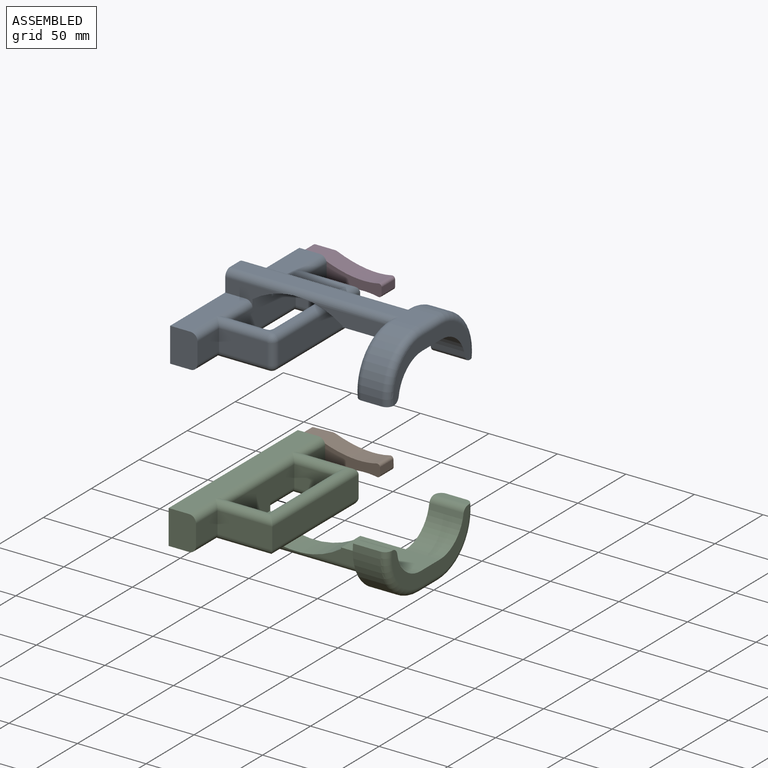
[diagram: assembled view]
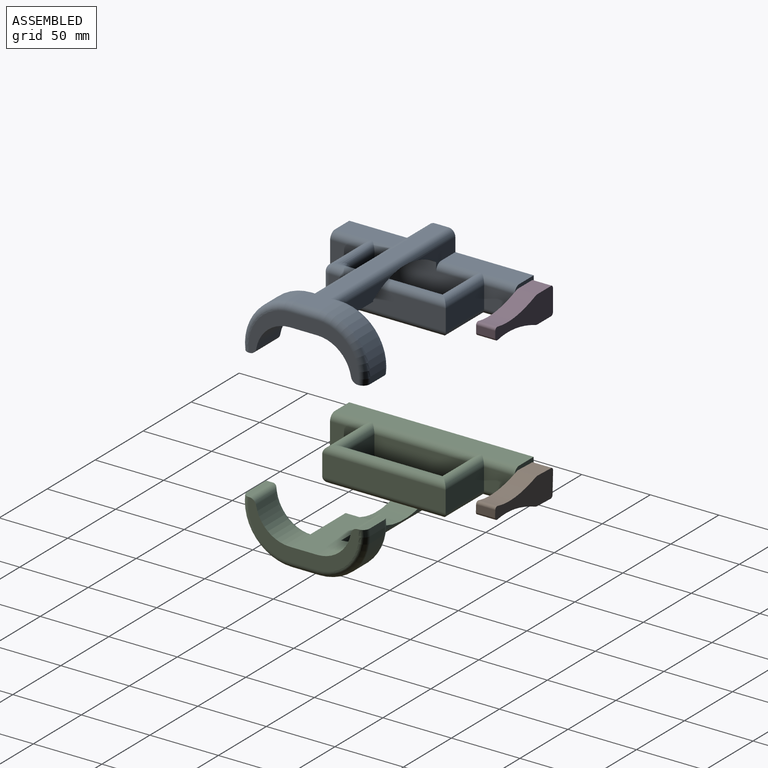
[diagram: assembled view, second angle]
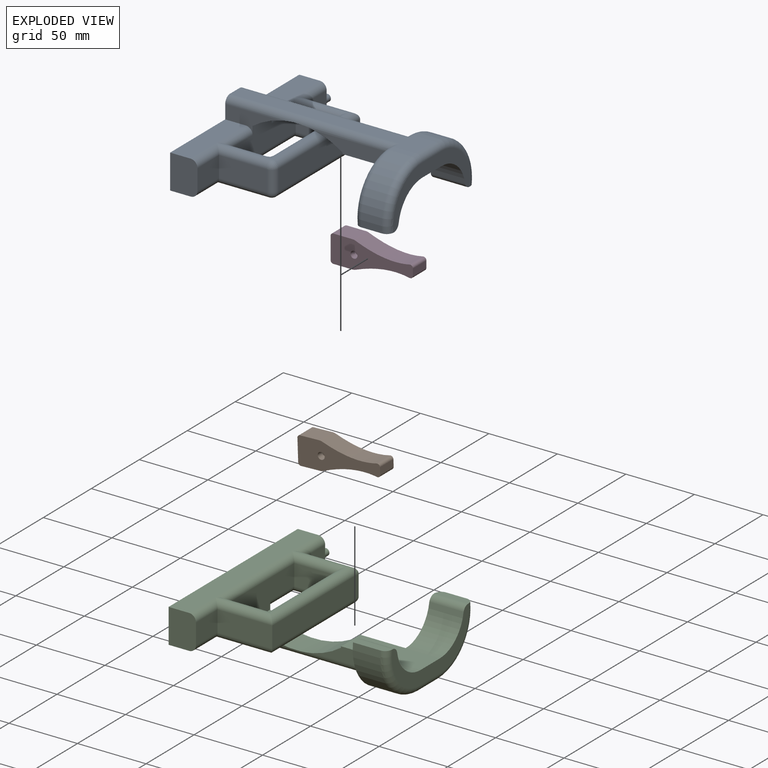
[diagram: exploded view]
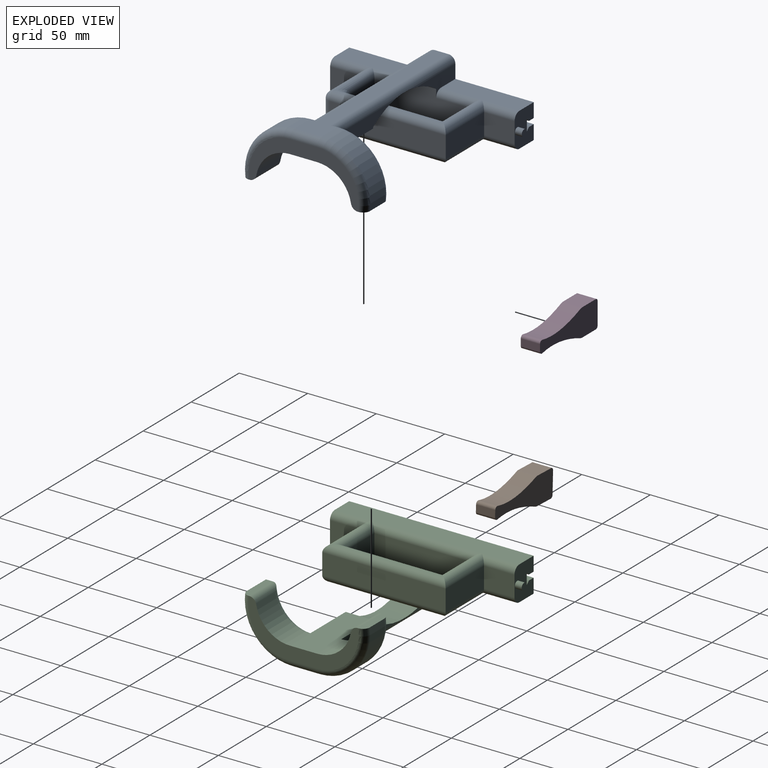
[diagram: exploded view, second angle]
ASSEMBLY  parts=4 mates=2
PART A: 70 faces, bbox 143.8x139.6x43.9 mm
  f0: plane 53.52x10mm, normal (0,-1,0), area 407mm2, adj f6,f26,f38,f39,f64
  f1: plane 40.31x15mm, normal (0,1,0), area 280.3mm2, adj f2,f8,f11,f38,f44,f67
  f2: plane 57.22x14.96mm, normal (0,0,1), area 856mm2, adj f1,f9,f11,f44,f52
  f3: plane 53.52x10mm, normal (0,1,0), area 407mm2, adj f6,f32,f38,f39,f67
  f4: plane 40.31x15mm, normal (0,-1,0), area 280.3mm2, adj f8,f11,f13,f38,f41,f64
  f5: plane 65x15mm, normal (-1,0,0), area 975mm2, adj f37,f42,f45,f50
  f6: plane 58.17x20mm, normal (0,0,-1), area 1163.4mm2, adj f0,f3,f23,f27,f29,f39
  f7: plane 22.22x15mm, normal (1,0,0), area 333.3mm2, adj f9,f33,f52,f58
  f8: plane 70x21mm, normal (1,0,0), area 1170mm2, adj f1,f4,f36,f37,f38,f41,f44,f48
  f9: plane 25x19.96mm, normal (0,1,0), area 435.6mm2, adj f2,f7,f11,f14,f15,f17,f18,f19
  f10: plane 22.36x15mm, normal (1,0,0), area 335.4mm2, adj f12,f35,f56,f57
  f11: plane 134.58x40mm, normal (-1,0,0), area 3186.5mm2, adj f1,f2,f4,f9,f12,f13,f14,f17
  f12: plane 25x19.96mm, normal (0,-1,0), area 488.3mm2, adj f10,f11,f13,f14,f56,f57
  f13: plane 57.36x14.96mm, normal (0,0,1), area 858.1mm2, adj f4,f11,f12,f41,f56
  f14: plane 134.58x14.96mm, normal (0,0,-1), area 2013.2mm2, adj f9,f11,f12,f48,f57,f58
  f15: cylinder r=2.5mm len=5mm, axis (0,-1,0), area 78.5mm2, adj f9,f16
  f16: plane 5x5mm, normal (0,1,0), area 19.6mm2, adj f15
  f17: plane 116.8x5mm, normal (0,0,-1), area 584mm2, adj f9,f11,f18,f22
  f18: plane 116.8x2.12mm, normal (0.71,0,-0.71), area 350.4mm2, adj f9,f17,f19,f22
  f19: plane 116.8x8.24mm, normal (-1,0,0), area 962.7mm2, adj f9,f18,f20,f22
  f20: plane 116.8x2.12mm, normal (0.71,0,0.71), area 350.4mm2, adj f9,f19,f21,f22
  f21: plane 116.8x5mm, normal (0,0,1), area 584mm2, adj f9,f11,f20,f22
  f22: plane 8.24x7.12mm, normal (0,1,0), area 33mm2, adj f11,f17,f18,f19,f20,f21
  f23: plane 80.39x34.78mm, normal (1,0,0), area 932.2mm2, adj f6,f25,f27,f29,f30,f59,f60,f61
  f24: plane 138.77x20mm, normal (0,0,1), area 1537.7mm2, adj f11,f28,f31,f60,f64,f65,f67,f68
  f25: plane 25x5.44mm, normal (0,0,-1), area 125.2mm2, adj f23,f26,f28,f59,f63,f66
  f26: plane 34.78x30.2mm, normal (-1,0,0), area 366.1mm2, adj f0,f25,f27,f63,f66
  f27: cylinder r=24.9mm len=25mm, axis (1,0,0), area 870.7mm2, adj f6,f23,f26,f63
  f28: cylinder r=35.2mm len=39.78mm, axis (1,0,0), area 898.3mm2, adj f24,f25,f59,f66
  f29: cylinder r=24.9mm len=25mm, axis (1,0,0), area 870.7mm2, adj f6,f23,f32,f62
  f30: plane 25x5.44mm, normal (0,0,-1), area 125.2mm2, adj f23,f31,f32,f61,f62,f69
  f31: cylinder r=35.2mm len=39.78mm, axis (1,0,0), area 898.3mm2, adj f24,f30,f61,f69
  f32: plane 34.78x30.2mm, normal (-1,0,0), area 366.1mm2, adj f3,f29,f30,f62,f69
  f33: plane 40x15mm, normal (0,1,0), area 600mm2, adj f7,f34,f43,f46
  f34: plane 85x15mm, normal (1,0,0), area 1275mm2, adj f33,f42,f45,f54
  f35: plane 35x15mm, normal (0,-1,0), area 525mm2, adj f10,f40,f47,f54
  f36: plane 25x15mm, normal (0,1,0), area 375mm2, adj f8,f40,f47,f50
  f37: plane 30x15mm, normal (0,-1,0), area 450mm2, adj f5,f8,f43,f46
  f38: cylinder r=57.08mm len=65.64mm, axis (0,1,0), area 1393.5mm2, adj f0,f1,f3,f4,f8,f39,f64,f67
  f39: plane 20x1mm, normal (-1,0,0), area 20mm2, adj f0,f3,f6,f38
  f40: cylinder r=5mm len=40mm, axis (-1,0,0), area 528.3mm2, adj f35,f36,f41,f51,f53,f56
  f41: cylinder r=5mm len=30mm, axis (0,-1,0), area 210.6mm2, adj f4,f8,f13,f40
  f42: cylinder r=5mm len=85mm, axis (0,1,0), area 1206.6mm2, adj f5,f34,f43,f51,f53
  f43: cylinder r=5mm len=45mm, axis (-1,0,0), area 578.3mm2, adj f33,f37,f42,f44,f52
  f44: cylinder r=5mm len=30mm, axis (0,-1,0), area 210.6mm2, adj f1,f2,f8,f43
  f45: cylinder r=5mm len=85mm, axis (0,1,0), area 1206.6mm2, adj f5,f34,f46,f49,f55
  f46: cylinder r=5mm len=45mm, axis (-1,0,0), area 578.3mm2, adj f33,f37,f45,f48,f58
  f47: cylinder r=5mm len=40mm, axis (1,0,0), area 528.3mm2, adj f35,f36,f48,f49,f55,f57
  f48: cylinder r=5mm len=80mm, axis (0,1,0), area 578.3mm2, adj f8,f14,f46,f47
  f49: bspline ~10x10mm, area 47.2mm2, adj f45,f47,f50
  f50: cylinder r=5mm len=15mm, axis (0,0,1), area 117.8mm2, adj f5,f36,f49,f51
  f51: bspline ~10x10mm, area 47.2mm2, adj f40,f42,f50
  f52: cylinder r=5mm len=27.22mm, axis (0,-1,0), area 188.8mm2, adj f2,f7,f9,f43
  f53: sphere r=5mm, area 39.3mm2, adj f40,f42,f54
  f54: cylinder r=5mm len=15mm, axis (0,0,1), area 117.8mm2, adj f34,f35,f53,f55
  f55: sphere r=5mm, area 39.3mm2, adj f45,f47,f54
  f56: cylinder r=5mm len=27.36mm, axis (0,-1,0), area 189.9mm2, adj f10,f12,f13,f40
  f57: cylinder r=5mm len=27.36mm, axis (0,1,0), area 189.9mm2, adj f10,f12,f14,f47
  f58: cylinder r=5mm len=27.22mm, axis (0,1,0), area 188.8mm2, adj f7,f9,f14,f46
  f59: torus R=30.2mm, axis (1,0,0), area 448mm2, adj f23,f25,f28,f60
  f60: cylinder r=5mm len=20mm, axis (0,-1,0), area 157.1mm2, adj f23,f24,f59,f61
  f61: torus R=30.2mm, axis (1,0,0), area 448mm2, adj f23,f30,f31,f60
  f62: cylinder r=5mm len=25mm, axis (1,0,0), area 174.9mm2, adj f23,f29,f30,f32
  f63: cylinder r=5mm len=25mm, axis (1,0,0), area 174.9mm2, adj f23,f25,f26,f27
  f64: cylinder r=5mm len=123.77mm, axis (-1,0,0), area 923.9mm2, adj f0,f4,f11,f24,f38,f65
  f65: cylinder r=5mm len=5mm, axis (0,-1,0), area 14.3mm2, adj f24,f64,f66
  f66: torus R=30.2mm, axis (1,0,0), area 448mm2, adj f25,f26,f28,f65
  f67: cylinder r=5mm len=123.77mm, axis (1,0,0), area 923.9mm2, adj f1,f3,f11,f24,f38,f68
  f68: cylinder r=5mm len=5mm, axis (0,1,0), area 14.3mm2, adj f24,f67,f69
  f69: torus R=30.2mm, axis (1,0,0), area 448mm2, adj f30,f31,f32,f68
PART B: 16 faces, bbox 60.1x14x20 mm
  f0: plane 60.09x20mm, normal (0,1,0), area 776.8mm2, adj f2,f3,f4,f7,f8,f9,f10,f11
  f1: plane 60.09x20mm, normal (0,-1,0), area 756.4mm2, adj f2,f3,f4,f5,f7,f8,f9,f10
  f2: plane 14x4.92mm, normal (1,0,0), area 68.9mm2, adj f0,f1,f9,f10
  f3: plane 14.11x14mm, normal (0,0,1), area 197.6mm2, adj f0,f1,f12,f15
  f4: plane 14.11x14mm, normal (0,0,-1), area 197.6mm2, adj f0,f1,f13,f14
  f5: cylinder r=2.55mm len=5.1mm, axis (0,-1,0), area 80.1mm2, adj f1,f6
  f6: plane 5.1x5.1mm, normal (0,-1,0), area 20.4mm2, adj f5
  f7: extruded ~39.7x14mm, area 568.8mm2, adj f0,f1,f10,f15
  f8: extruded ~39.7x14mm, area 568.8mm2, adj f0,f1,f9,f14
  f9: cylinder r=2mm len=14mm, axis (0,1,0), area 49.9mm2, adj f0,f1,f2,f8
  f10: cylinder r=2mm len=14mm, axis (0,1,0), area 49.9mm2, adj f0,f1,f2,f7
  f11: plane 16x14mm, normal (-1,0,0), area 224mm2, adj f0,f1,f12,f13
  f12: cylinder r=2mm len=14mm, axis (0,1,0), area 44mm2, adj f0,f1,f3,f11
  f13: cylinder r=2mm len=14mm, axis (0,-1,0), area 44mm2, adj f0,f1,f4,f11
  f14: cylinder r=5mm len=14mm, axis (0,1,0), area 26.6mm2, adj f0,f1,f4,f8
  f15: cylinder r=5mm len=14mm, axis (0,1,0), area 26.6mm2, adj f0,f1,f3,f7
PART C: 63 faces, bbox 143.8x139.6x43.9 mm
  f0: plane 53.52x10mm, normal (0,1,0), area 407mm2, adj f12,f13,f14,f19,f59
  f1: plane 40.31x15mm, normal (0,-1,0), area 280.3mm2, adj f2,f19,f30,f37,f44,f56
  f2: plane 57.36x14.96mm, normal (0,0,-1), area 858.1mm2, adj f1,f29,f30,f44,f54
  f3: plane 25x5.44mm, normal (0,0,1), area 130.6mm2, adj f8,f9,f10,f51,f61,f62
  f4: plane 25x5.44mm, normal (0,0,1), area 125.2mm2, adj f10,f11,f12,f49,f57,f60
  f5: cylinder r=24.9mm len=25mm, axis (1,0,0), area 870.7mm2, adj f10,f12,f13,f60
  f6: cylinder r=24.9mm len=24.53mm, axis (1,0,0), area 696.6mm2, adj f10,f13,f61,f62
  f7: plane 5x5mm, normal (0,1,0), area 19.6mm2, adj f18
  f8: plane 40.2x39.78mm, normal (-1,0,0), area 440.7mm2, adj f3,f9,f20,f21,f56,f61
  f9: cylinder r=35.2mm len=39.78mm, axis (1,0,0), area 1197.7mm2, adj f3,f8,f21,f51
  f10: plane 80.39x34.78mm, normal (1,0,0), area 932.2mm2, adj f3,f4,f5,f6,f13,f49,f50,f51
  f11: cylinder r=35.2mm len=39.78mm, axis (1,0,0), area 898.3mm2, adj f4,f21,f49,f57
  f12: plane 34.78x30.2mm, normal (-1,0,0), area 366.1mm2, adj f0,f4,f5,f57,f60
  f13: plane 58.17x20mm, normal (0,0,1), area 1163.4mm2, adj f0,f5,f6,f10,f14,f20
  f14: plane 20x1mm, normal (-1,0,0), area 20mm2, adj f0,f13,f19,f20
  f15: plane 116.8x2.12mm, normal (0.71,0,-0.71), area 350.4mm2, adj f16,f24,f25,f33
  f16: plane 116.8x8.24mm, normal (-1,0,0), area 962.7mm2, adj f15,f17,f24,f33
  f17: plane 116.8x2.12mm, normal (0.71,0,0.71), area 350.4mm2, adj f16,f23,f24,f33
  f18: cylinder r=2.5mm len=5mm, axis (0,-1,0), area 78.5mm2, adj f7,f33
  f19: cylinder r=57.08mm len=65.64mm, axis (0,1,0), area 1393.5mm2, adj f0,f1,f14,f20,f22,f37,f56,f59
  f20: plane 58.52x10mm, normal (0,-1,0), area 412.4mm2, adj f8,f13,f14,f19,f56,f61
  f21: plane 138.77x20mm, normal (0,0,-1), area 1562.7mm2, adj f8,f9,f11,f30,f50,f56,f58,f59
  f22: plane 40.31x15mm, normal (0,1,0), area 280.3mm2, adj f19,f30,f34,f37,f48,f59
  f23: plane 116.8x5mm, normal (0,0,1), area 584mm2, adj f17,f24,f30,f33
  f24: plane 8.24x7.12mm, normal (0,1,0), area 33mm2, adj f15,f16,f17,f23,f25,f30
  f25: plane 116.8x5mm, normal (0,0,-1), area 584mm2, adj f15,f24,f30,f33
  f26: plane 40x15mm, normal (0,-1,0), area 600mm2, adj f27,f31,f40,f45
  f27: plane 90x15mm, normal (1,0,0), area 1350mm2, adj f26,f28,f41,f46
  f28: plane 40x15mm, normal (0,1,0), area 600mm2, adj f27,f32,f43,f47
  f29: plane 25x19.96mm, normal (0,-1,0), area 488.3mm2, adj f2,f30,f31,f39,f53,f54
  f30: plane 134.58x40mm, normal (-1,0,0), area 3186.5mm2, adj f1,f2,f21,f22,f23,f24,f25,f29
  f31: plane 22.36x15mm, normal (1,0,0), area 335.4mm2, adj f26,f29,f53,f54
  f32: plane 22.22x15mm, normal (1,0,0), area 333.3mm2, adj f28,f33,f52,f55
  f33: plane 25x19.96mm, normal (0,1,0), area 435.6mm2, adj f15,f16,f17,f18,f23,f25,f30,f32
  f34: plane 57.22x14.96mm, normal (0,0,-1), area 856mm2, adj f22,f30,f33,f48,f55
  f35: plane 30x15mm, normal (0,-1,0), area 450mm2, adj f37,f38,f43,f47
  f36: plane 30x15mm, normal (0,1,0), area 450mm2, adj f37,f38,f40,f45
  f37: plane 70x21mm, normal (1,0,0), area 1170mm2, adj f1,f19,f22,f35,f36,f42,f44,f48
  f38: plane 70x15mm, normal (-1,0,0), area 1050mm2, adj f35,f36,f41,f46
  f39: plane 134.58x14.96mm, normal (0,0,1), area 2013.2mm2, adj f29,f30,f33,f42,f52,f53
  f40: cylinder r=5mm len=45mm, axis (1,0,0), area 578.3mm2, adj f26,f36,f41,f42,f53
  f41: cylinder r=5mm len=90mm, axis (0,1,0), area 1256.6mm2, adj f27,f38,f40,f43
  f42: cylinder r=5mm len=80mm, axis (0,-1,0), area 578.3mm2, adj f37,f39,f40,f43
  f43: cylinder r=5mm len=45mm, axis (-1,0,0), area 578.3mm2, adj f28,f35,f41,f42,f52
  f44: cylinder r=5mm len=30mm, axis (0,-1,0), area 210.6mm2, adj f1,f2,f37,f45
  f45: cylinder r=5mm len=45mm, axis (-1,0,0), area 578.3mm2, adj f26,f36,f44,f46,f54
  f46: cylinder r=5mm len=90mm, axis (0,-1,0), area 1256.6mm2, adj f27,f38,f45,f47
  f47: cylinder r=5mm len=45mm, axis (1,0,0), area 578.3mm2, adj f28,f35,f46,f48,f55
  f48: cylinder r=5mm len=30mm, axis (0,-1,0), area 210.6mm2, adj f22,f34,f37,f47
  f49: torus R=30.2mm, axis (1,0,0), area 448mm2, adj f4,f10,f11,f50
  f50: cylinder r=5mm len=20mm, axis (0,-1,0), area 157.1mm2, adj f10,f21,f49,f51
  f51: torus R=30.2mm, axis (1,0,0), area 448mm2, adj f3,f9,f10,f50
  f52: cylinder r=5mm len=27.22mm, axis (0,-1,0), area 188.8mm2, adj f32,f33,f39,f43
  f53: cylinder r=5mm len=27.36mm, axis (0,-1,0), area 189.9mm2, adj f29,f31,f39,f40
  f54: cylinder r=5mm len=27.36mm, axis (0,-1,0), area 189.9mm2, adj f2,f29,f31,f45
  f55: cylinder r=5mm len=27.22mm, axis (0,-1,0), area 188.8mm2, adj f32,f33,f34,f47
  f56: cylinder r=5mm len=118.77mm, axis (-1,0,0), area 909.6mm2, adj f1,f8,f19,f20,f21,f30
  f57: torus R=30.2mm, axis (1,0,0), area 448mm2, adj f4,f11,f12,f58
  f58: cylinder r=5mm len=5mm, axis (0,1,0), area 14.3mm2, adj f21,f57,f59
  f59: cylinder r=5mm len=123.77mm, axis (1,0,0), area 923.9mm2, adj f0,f19,f21,f22,f30,f58
  f60: cylinder r=5mm len=25mm, axis (1,0,0), area 174.9mm2, adj f4,f5,f10,f12
  f61: torus R=29.9mm, axis (1,0,0), area 317.5mm2, adj f3,f6,f8,f20,f62
  f62: cylinder r=5mm len=24.98mm, axis (1,0,0), area 161.7mm2, adj f3,f6,f10,f61
PART D: same geometry as B
PLACE A t=(-18.3,-70.03,21.81)mm fixed
PLACE B rot(axis=(0,-1,0),2deg) t=(-58.01,-3.39,-8.64)mm
PLACE C t=(-18.99,-70.61,-73.34)mm fixed
PLACE D t=(-54.17,-2.81,111.91)mm
MATE revolute D.f5 <-> A.f15  axis (0,-1,0) through (-44.17,-2.81,21.81)mm
MATE revolute B.f5 <-> C.f18  axis (0,-1,0) through (-44.85,-3.39,-98.34)mm
